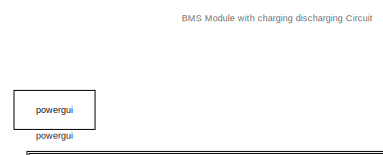
[diagram: root canvas - part 1/3, top center region]
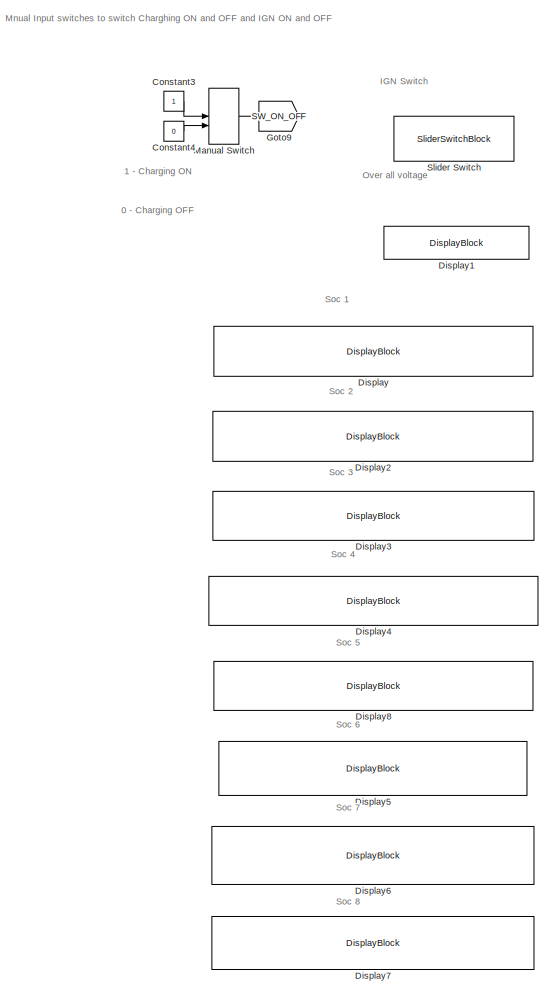
[diagram: root canvas - part 2/3, left side, full height]
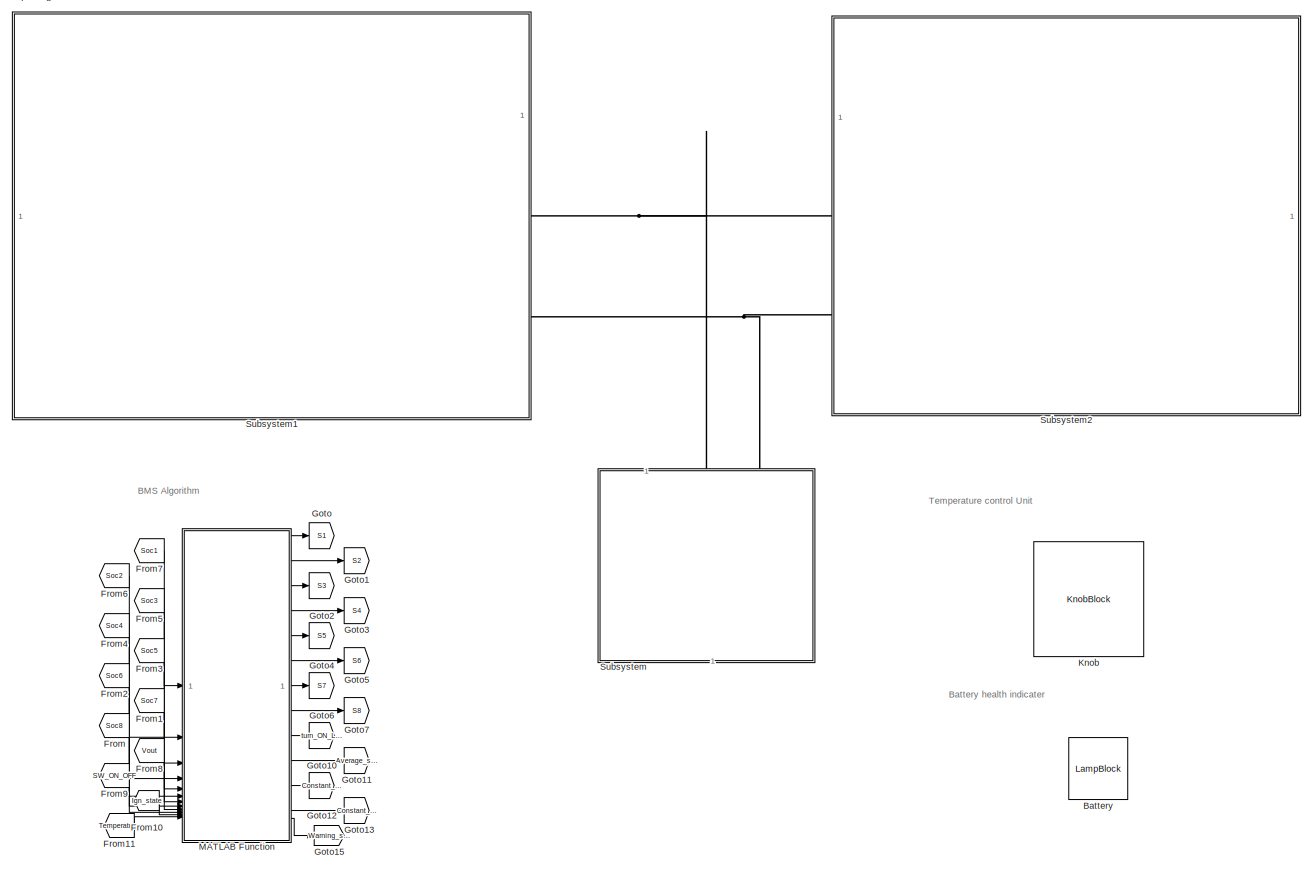
[diagram: root canvas - part 3/3, center side, full height]
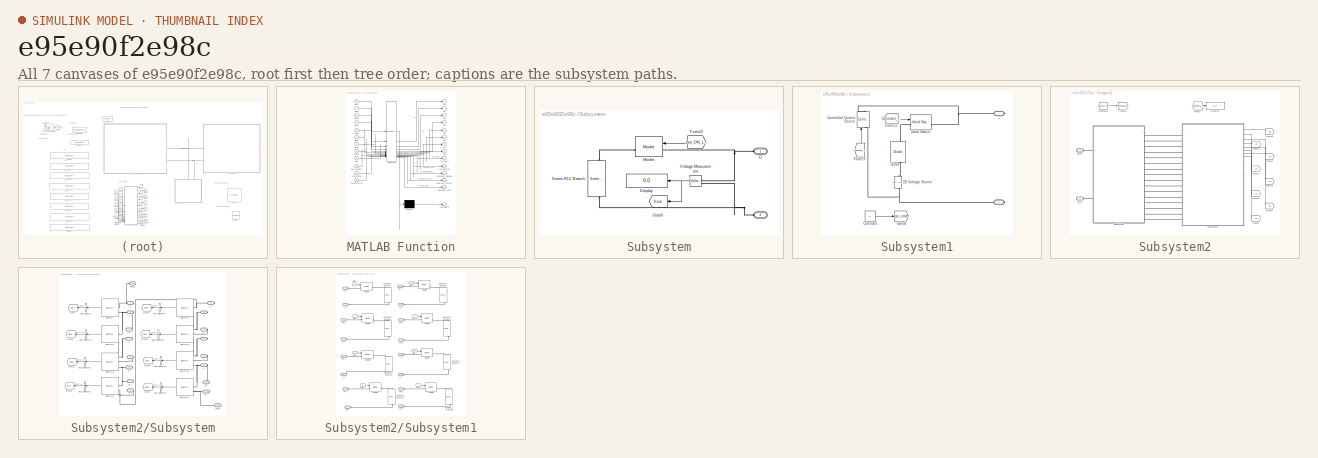
[diagram: thumbnail index - all 7 canvases of the model, root first then tree order]
MODEL slx_e95e90f2e98c
KIND model
CONFIG AbsTol = auto
CONFIG EnableMultiTasking = off
CONFIG FixedStep = auto
CONFIG MaxStep = auto
CONFIG MinStep = auto
CONFIG RelTol = 1e-3
CONFIG SampleTimeConstraint = Unconstrained
CONFIG SolverName = VariableStepAuto
CONFIG StartTime = 0.0
CONFIG StopTime = 3600
BLOCK [LampBlock] Battery
  Icon = Battery
  LabelPosition = Hide
BLOCK [Constant] Constant3
BLOCK [Constant] Constant4
  Value = 0
BLOCK [DisplayBlock] Display
  LabelPosition = Hide
  Transparency = 1
BLOCK [DisplayBlock] Display1
  LabelPosition = Hide
  Transparency = 1
BLOCK [DisplayBlock] Display2
  LabelPosition = Hide
  Transparency = 1
BLOCK [DisplayBlock] Display3
  LabelPosition = Hide
  Transparency = 1
BLOCK [DisplayBlock] Display4
  LabelPosition = Hide
  Transparency = 1
BLOCK [DisplayBlock] Display5
  LabelPosition = Hide
  Transparency = 1
BLOCK [DisplayBlock] Display6
  LabelPosition = Hide
  Transparency = 1
BLOCK [DisplayBlock] Display7
  LabelPosition = Hide
  Transparency = 1
BLOCK [DisplayBlock] Display8
  LabelPosition = Hide
  Transparency = 1
BLOCK [From] From
  GotoTag = Soc8
  TagVisibility = global
BLOCK [From] From1
  GotoTag = Soc7
  TagVisibility = global
BLOCK [From] From10
  GotoTag = Ign_state
  TagVisibility = global
BLOCK [From] From11
  GotoTag = Temperature
  TagVisibility = global
BLOCK [From] From2
  GotoTag = Soc6
  TagVisibility = global
BLOCK [From] From3
  GotoTag = Soc5
  TagVisibility = global
BLOCK [From] From4
  GotoTag = Soc4
  TagVisibility = global
BLOCK [From] From5
  GotoTag = Soc3
  TagVisibility = global
BLOCK [From] From6
  GotoTag = Soc2
  TagVisibility = global
BLOCK [From] From7
  GotoTag = Soc1
  TagVisibility = global
BLOCK [From] From8
  GotoTag = Vout
  TagVisibility = global
BLOCK [From] From9
  GotoTag = SW_ON_OFF
BLOCK [Goto] Goto
  GotoTag = S1
  TagVisibility = global
BLOCK [Goto] Goto1
  GotoTag = S2
  TagVisibility = global
BLOCK [Goto] Goto10
  GotoTag = turn_ON_Load
  TagVisibility = global
BLOCK [Goto] Goto11
  GotoTag = Average_soc
  TagVisibility = global
BLOCK [Goto] Goto12
  GotoTag = Constant_voltage
  TagVisibility = global
BLOCK [Goto] Goto13
  GotoTag = Constant_Current
  TagVisibility = global
BLOCK [Goto] Goto15
  GotoTag = Warning_state
  TagVisibility = global
BLOCK [Goto] Goto2
  GotoTag = S3
  TagVisibility = global
BLOCK [Goto] Goto3
  GotoTag = S4
  TagVisibility = global
BLOCK [Goto] Goto4
  GotoTag = S5
  TagVisibility = global
BLOCK [Goto] Goto5
  GotoTag = S6
  TagVisibility = global
BLOCK [Goto] Goto6
  GotoTag = S7
  TagVisibility = global
BLOCK [Goto] Goto7
  GotoTag = S8
  TagVisibility = global
BLOCK [Goto] Goto9
  GotoTag = SW_ON_OFF
BLOCK [KnobBlock] Knob
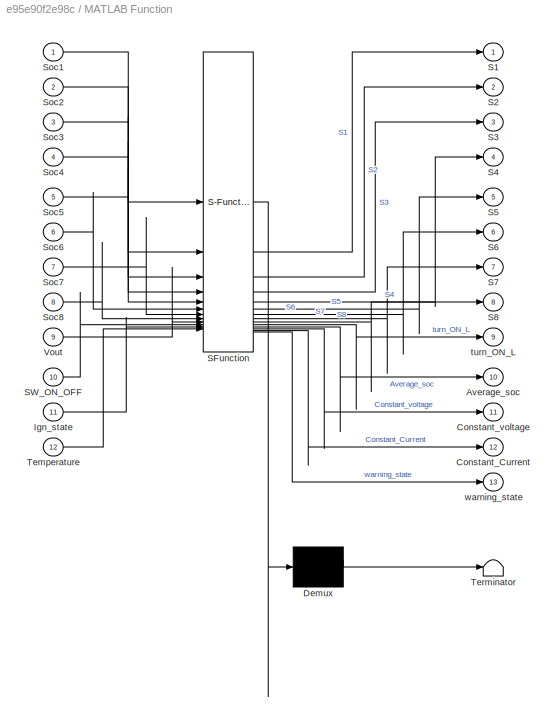
BLOCK [SubSystem] MATLAB Function
  ErrorFcn = Stateflow.Translate.translate
  PermitHierarchicalResolution = ExplicitOnly
  SFBlockType = MATLAB Function
  TreatAsAtomicUnit = on
BLOCK [Demux] MATLAB Function/ Demux 
  Outputs = 1
BLOCK [S-Function] MATLAB Function/ SFunction 
  EnableBusSupport = on
  FunctionName = sf_sfun
  PortCounts = [12 14]
  SFcnIsStateOwnerBlock = off
  SFunctionDeploymentMode = off
  Tag = Stateflow S-Function 2
BLOCK [Terminator] MATLAB Function/ Terminator 
BLOCK [Outport] MATLAB Function/Average_soc
  Port = 10
BLOCK [Outport] MATLAB Function/Constant_Current
  Port = 12
BLOCK [Outport] MATLAB Function/Constant_voltage
  Port = 11
BLOCK [Inport] MATLAB Function/Ign_state
  Port = 11
BLOCK [Outport] MATLAB Function/S1
BLOCK [Outport] MATLAB Function/S2
  Port = 2
BLOCK [Outport] MATLAB Function/S3
  Port = 3
BLOCK [Outport] MATLAB Function/S4
  Port = 4
BLOCK [Outport] MATLAB Function/S5
  Port = 5
BLOCK [Outport] MATLAB Function/S6
  Port = 6
BLOCK [Outport] MATLAB Function/S7
  Port = 7
BLOCK [Outport] MATLAB Function/S8
  Port = 8
BLOCK [Inport] MATLAB Function/SW_ON_OFF
  Port = 10
BLOCK [Inport] MATLAB Function/Soc1
BLOCK [Inport] MATLAB Function/Soc2
  Port = 2
BLOCK [Inport] MATLAB Function/Soc3
  Port = 3
BLOCK [Inport] MATLAB Function/Soc4
  Port = 4
BLOCK [Inport] MATLAB Function/Soc5
  Port = 5
BLOCK [Inport] MATLAB Function/Soc6
  Port = 6
BLOCK [Inport] MATLAB Function/Soc7
  Port = 7
BLOCK [Inport] MATLAB Function/Soc8
  Port = 8
BLOCK [Inport] MATLAB Function/Temperature
  Port = 12
BLOCK [Inport] MATLAB Function/Vout
  Port = 9
BLOCK [Outport] MATLAB Function/turn_ON_L
  Port = 9
BLOCK [Outport] MATLAB Function/warning_state
  Port = 13
BLOCK [ManualSwitch] Manual Switch
  CurrentSetting = 0
BLOCK [SliderSwitchBlock] Slider Switch
BLOCK [SubSystem] Subsystem
  NameLocation = left
BLOCK [PMIOPort] Subsystem/-
  NameLocation = top
  Port = 2
  Side = Left
BLOCK [PMIOPort] Subsystem/D
  NameLocation = top
  Side = Left
BLOCK [Display] Subsystem/Display
  Decimation = 1
  NameLocation = top
BLOCK [From] Subsystem/From12
  GotoTag = turn_ON_Load
  NameLocation = top
  TagVisibility = global
BLOCK [Goto] Subsystem/Goto8
  GotoTag = Vout
  NameLocation = top
  TagVisibility = global
BLOCK [Reference] Subsystem/Mosfet  REF=spsMosfetLib/Mosfet
  LibrarySourceBlock = sps_lib/Power Electronics/Mosfet
  SourceBlock = spsMosfetLib/Mosfet
  SourceType = Mosfet
BLOCK [Reference] Subsystem/Series RLC Branch  REF=spsSeriesRLCBranchLib/Series RLC Branch
  LibrarySourceBlock = sps_lib/Passives/Series RLC Branch
  NameLocation = left
  SourceBlock = spsSeriesRLCBranchLib/Series RLC Branch
  SourceType = Series RLC Branch
BLOCK [Reference] Subsystem/Voltage Measurement  REF=spsVoltageMeasurementLib/Voltage Measurement
  LibrarySourceBlock = sps_lib/Sensors and Measurements/Voltage Measurement
  NameLocation = top
  SourceBlock = spsVoltageMeasurementLib/Voltage Measurement
  SourceType = Voltage Measurement
  UserDataPersistent = on
BLOCK [SubSystem] Subsystem1
BLOCK [PMIOPort] Subsystem1/+
  Side = Right
BLOCK [PMIOPort] Subsystem1/-
  Port = 2
  Side = Right
BLOCK [Constant] Subsystem1/Constant
  Value = 0
BLOCK [Reference] Subsystem1/Controlled Current Source  REF=spsControlledCurrentSourceLib/Controlled Current Source
  LibrarySourceBlock = sps_lib/Sources/Controlled Current Source
  SourceBlock = spsControlledCurrentSourceLib/Controlled Current Source
  SourceType = Controlled Current Source
BLOCK [Reference] Subsystem1/DC Voltage Source  REF=spsDCVoltageSourceLib/DC Voltage Source
  LibrarySourceBlock = sps_lib/Sources/DC Voltage Source
  SourceBlock = spsDCVoltageSourceLib/DC Voltage Source
  SourceType = DC Voltage Source
BLOCK [Reference] Subsystem1/Diode  REF=spsDiodeLib/Diode
  LibrarySourceBlock = sps_lib/Power Electronics/Diode
  NameLocation = right
  SourceBlock = spsDiodeLib/Diode
  SourceType = Diode
BLOCK [From] Subsystem1/From10
  GotoTag = Constant_Current
  NameLocation = right
  TagVisibility = global
BLOCK [From] Subsystem1/From11
  GotoTag = Constant_voltage
  TagVisibility = global
BLOCK [Goto] Subsystem1/Goto8
  GotoTag = Ign_state
  TagVisibility = global
BLOCK [Reference] Subsystem1/Ideal Switch  REF=spsIdealSwitchLib/Ideal Switch
  LibrarySourceBlock = sps_lib/Power Electronics/Ideal Switch
  SourceBlock = spsIdealSwitchLib/Ideal Switch
  SourceType = Ideal Switch
BLOCK [SubSystem] Subsystem2
BLOCK [Constant] Subsystem2/Constant1
  Value = 96.0228271484375
BLOCK [Display] Subsystem2/Display1
  Decimation = 1
BLOCK [From] Subsystem2/From1
  GotoTag = Warning_state
  TagVisibility = global
BLOCK [From] Subsystem2/From10
  GotoTag = S3
  NameLocation = top
  TagVisibility = global
BLOCK [From] Subsystem2/From11
  GotoTag = S4
  NameLocation = top
  TagVisibility = global
BLOCK [From] Subsystem2/From12
  GotoTag = S7
  NameLocation = top
  TagVisibility = global
BLOCK [From] Subsystem2/From13
  GotoTag = S8
  NameLocation = top
  TagVisibility = global
BLOCK [From] Subsystem2/From14
  GotoTag = S5
  NameLocation = top
  TagVisibility = global
BLOCK [From] Subsystem2/From15
  GotoTag = S6
  NameLocation = top
  TagVisibility = global
BLOCK [From] Subsystem2/From8
  GotoTag = S1
  NameLocation = top
  TagVisibility = global
BLOCK [From] Subsystem2/From9
  GotoTag = S2
  NameLocation = top
  TagVisibility = global
BLOCK [Goto] Subsystem2/Goto14
  GotoTag = Temperature
  TagVisibility = global
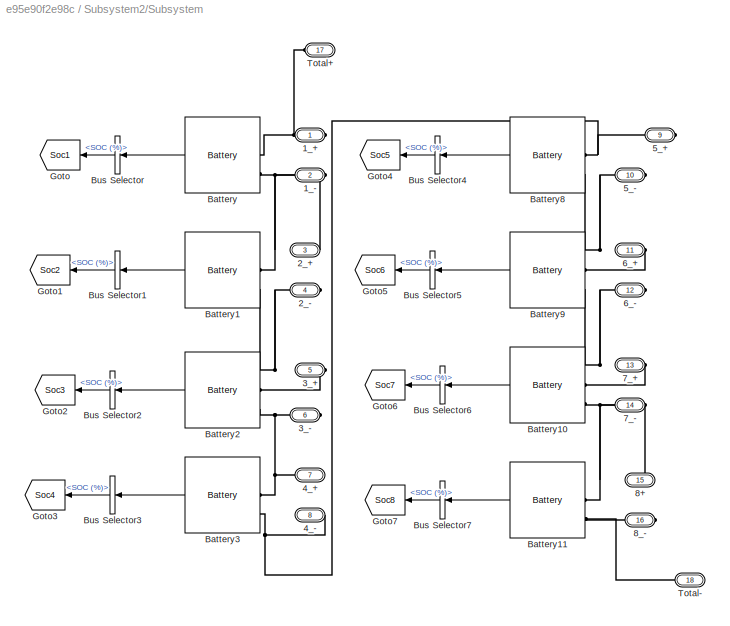
BLOCK [SubSystem] Subsystem2/Subsystem
BLOCK [PMIOPort] Subsystem2/Subsystem/1_+
  Side = Right
BLOCK [PMIOPort] Subsystem2/Subsystem/1_-
  Port = 2
  Side = Right
BLOCK [PMIOPort] Subsystem2/Subsystem/2_+
  Port = 3
  Side = Right
BLOCK [PMIOPort] Subsystem2/Subsystem/2_-
  Port = 4
  Side = Right
BLOCK [PMIOPort] Subsystem2/Subsystem/3_+
  Port = 5
  Side = Right
BLOCK [PMIOPort] Subsystem2/Subsystem/3_-
  Port = 6
  Side = Right
BLOCK [PMIOPort] Subsystem2/Subsystem/4_+
  Port = 7
  Side = Right
BLOCK [PMIOPort] Subsystem2/Subsystem/4_-
  Port = 8
  Side = Right
BLOCK [PMIOPort] Subsystem2/Subsystem/5_+
  Port = 9
  Side = Right
BLOCK [PMIOPort] Subsystem2/Subsystem/5_-
  Port = 10
  Side = Right
BLOCK [PMIOPort] Subsystem2/Subsystem/6_+
  Port = 11
  Side = Right
BLOCK [PMIOPort] Subsystem2/Subsystem/6_-
  Port = 12
  Side = Right
BLOCK [PMIOPort] Subsystem2/Subsystem/7_+
  Port = 13
  Side = Right
BLOCK [PMIOPort] Subsystem2/Subsystem/7_-
  Port = 14
  Side = Right
BLOCK [PMIOPort] Subsystem2/Subsystem/8+
  NameLocation = top
  Port = 15
  Side = Right
BLOCK [PMIOPort] Subsystem2/Subsystem/8_-
  Port = 16
  Side = Right
BLOCK [Reference] Subsystem2/Subsystem/Battery  REF=spsBatteryLib/Battery
  LibrarySourceBlock = sps_lib/Sources/Battery
  SourceBlock = spsBatteryLib/Battery
  SourceType = Battery
BLOCK [Reference] Subsystem2/Subsystem/Battery1  REF=spsBatteryLib/Battery
  LibrarySourceBlock = sps_lib/Sources/Battery
  SourceBlock = spsBatteryLib/Battery
  SourceType = Battery
BLOCK [Reference] Subsystem2/Subsystem/Battery10  REF=spsBatteryLib/Battery
  LibrarySourceBlock = sps_lib/Sources/Battery
  SourceBlock = spsBatteryLib/Battery
  SourceType = Battery
BLOCK [Reference] Subsystem2/Subsystem/Battery11  REF=spsBatteryLib/Battery
  LibrarySourceBlock = sps_lib/Sources/Battery
  SourceBlock = spsBatteryLib/Battery
  SourceType = Battery
BLOCK [Reference] Subsystem2/Subsystem/Battery2  REF=spsBatteryLib/Battery
  LibrarySourceBlock = sps_lib/Sources/Battery
  SourceBlock = spsBatteryLib/Battery
  SourceType = Battery
BLOCK [Reference] Subsystem2/Subsystem/Battery3  REF=spsBatteryLib/Battery
  LibrarySourceBlock = sps_lib/Sources/Battery
  SourceBlock = spsBatteryLib/Battery
  SourceType = Battery
BLOCK [Reference] Subsystem2/Subsystem/Battery8  REF=spsBatteryLib/Battery
  LibrarySourceBlock = sps_lib/Sources/Battery
  SourceBlock = spsBatteryLib/Battery
  SourceType = Battery
BLOCK [Reference] Subsystem2/Subsystem/Battery9  REF=spsBatteryLib/Battery
  LibrarySourceBlock = sps_lib/Sources/Battery
  SourceBlock = spsBatteryLib/Battery
  SourceType = Battery
BLOCK [BusSelector] Subsystem2/Subsystem/Bus Selector
  NameLocation = top
  OutputSignals = SOC (%)
BLOCK [BusSelector] Subsystem2/Subsystem/Bus Selector1
  NameLocation = top
  OutputSignals = SOC (%)
BLOCK [BusSelector] Subsystem2/Subsystem/Bus Selector2
  NameLocation = top
  OutputSignals = SOC (%)
BLOCK [BusSelector] Subsystem2/Subsystem/Bus Selector3
  NameLocation = top
  OutputSignals = SOC (%)
BLOCK [BusSelector] Subsystem2/Subsystem/Bus Selector4
  NameLocation = top
  OutputSignals = SOC (%)
BLOCK [BusSelector] Subsystem2/Subsystem/Bus Selector5
  NameLocation = top
  OutputSignals = SOC (%)
BLOCK [BusSelector] Subsystem2/Subsystem/Bus Selector6
  NameLocation = top
  OutputSignals = SOC (%)
BLOCK [BusSelector] Subsystem2/Subsystem/Bus Selector7
  NameLocation = top
  OutputSignals = SOC (%)
BLOCK [Goto] Subsystem2/Subsystem/Goto
  GotoTag = Soc1
  NameLocation = top
  TagVisibility = global
BLOCK [Goto] Subsystem2/Subsystem/Goto1
  GotoTag = Soc2
  NameLocation = top
  TagVisibility = global
BLOCK [Goto] Subsystem2/Subsystem/Goto2
  GotoTag = Soc3
  NameLocation = top
  TagVisibility = global
BLOCK [Goto] Subsystem2/Subsystem/Goto3
  GotoTag = Soc4
  NameLocation = top
  TagVisibility = global
BLOCK [Goto] Subsystem2/Subsystem/Goto4
  GotoTag = Soc5
  NameLocation = top
  TagVisibility = global
BLOCK [Goto] Subsystem2/Subsystem/Goto5
  GotoTag = Soc6
  NameLocation = top
  TagVisibility = global
BLOCK [Goto] Subsystem2/Subsystem/Goto6
  GotoTag = Soc7
  NameLocation = top
  TagVisibility = global
BLOCK [Goto] Subsystem2/Subsystem/Goto7
  GotoTag = Soc8
  NameLocation = top
  TagVisibility = global
BLOCK [PMIOPort] Subsystem2/Subsystem/Total+
  Port = 17
  Side = Left
BLOCK [PMIOPort] Subsystem2/Subsystem/Total-
  Port = 18
  Side = Left
BLOCK [SubSystem] Subsystem2/Subsystem1
  PortSchema = {"entries":[{"content":{"sides":[{"content":{"connectorIds":["LConn1","LConn2","LConn3","LConn4","LConn5","LConn6","LConn7","LConn8","LConn9","LConn10","LConn11","LConn12","LConn13","LConn14","LConn15","LConn16"]},"type":"ConnectorPlacement.EquallySpacedRectSide","uuid":"299ba52d-8015-465c-9de8-ad4a2af20b1b"},{"content":{"connectorIds":["In1","In2","In3","In4","In5","In6","In7","In8"],"side":"RIGH...<+408ch>
BLOCK [PMIOPort] Subsystem2/Subsystem1/D1_+
  Side = Left
BLOCK [PMIOPort] Subsystem2/Subsystem1/D2_+
  Port = 3
  Side = Left
BLOCK [PMIOPort] Subsystem2/Subsystem1/D3_+
  Port = 5
  Side = Left
BLOCK [PMIOPort] Subsystem2/Subsystem1/D4_+
  Port = 7
  Side = Left
BLOCK [PMIOPort] Subsystem2/Subsystem1/D5_+
  Port = 9
  Side = Left
BLOCK [PMIOPort] Subsystem2/Subsystem1/D6_+
  Port = 11
  Side = Left
BLOCK [PMIOPort] Subsystem2/Subsystem1/D7_+
  Port = 13
  Side = Left
BLOCK [PMIOPort] Subsystem2/Subsystem1/D8_+
  Port = 15
  Side = Left
BLOCK [Reference] Subsystem2/Subsystem1/Mosfet1  REF=spsMosfetLib/Mosfet
  LibrarySourceBlock = sps_lib/Power Electronics/Mosfet
  SourceBlock = spsMosfetLib/Mosfet
  SourceType = Mosfet
BLOCK [Reference] Subsystem2/Subsystem1/Mosfet2  REF=spsMosfetLib/Mosfet
  LibrarySourceBlock = sps_lib/Power Electronics/Mosfet
  SourceBlock = spsMosfetLib/Mosfet
  SourceType = Mosfet
BLOCK [Reference] Subsystem2/Subsystem1/Mosfet3  REF=spsMosfetLib/Mosfet
  LibrarySourceBlock = sps_lib/Power Electronics/Mosfet
  SourceBlock = spsMosfetLib/Mosfet
  SourceType = Mosfet
BLOCK [Reference] Subsystem2/Subsystem1/Mosfet4  REF=spsMosfetLib/Mosfet
  LibrarySourceBlock = sps_lib/Power Electronics/Mosfet
  SourceBlock = spsMosfetLib/Mosfet
  SourceType = Mosfet
BLOCK [Reference] Subsystem2/Subsystem1/Mosfet5  REF=spsMosfetLib/Mosfet
  LibrarySourceBlock = sps_lib/Power Electronics/Mosfet
  SourceBlock = spsMosfetLib/Mosfet
  SourceType = Mosfet
BLOCK [Reference] Subsystem2/Subsystem1/Mosfet6  REF=spsMosfetLib/Mosfet
  LibrarySourceBlock = sps_lib/Power Electronics/Mosfet
  SourceBlock = spsMosfetLib/Mosfet
  SourceType = Mosfet
BLOCK [Reference] Subsystem2/Subsystem1/Mosfet7  REF=spsMosfetLib/Mosfet
  LibrarySourceBlock = sps_lib/Power Electronics/Mosfet
  SourceBlock = spsMosfetLib/Mosfet
  SourceType = Mosfet
BLOCK [Reference] Subsystem2/Subsystem1/Mosfet8  REF=spsMosfetLib/Mosfet
  LibrarySourceBlock = sps_lib/Power Electronics/Mosfet
  SourceBlock = spsMosfetLib/Mosfet
  SourceType = Mosfet
BLOCK [PMIOPort] Subsystem2/Subsystem1/S_1-
  Port = 2
  Side = Left
BLOCK [PMIOPort] Subsystem2/Subsystem1/S_2-
  Port = 4
  Side = Left
BLOCK [PMIOPort] Subsystem2/Subsystem1/S_3-
  Port = 6
  Side = Left
BLOCK [PMIOPort] Subsystem2/Subsystem1/S_4-
  Port = 8
  Side = Left
BLOCK [PMIOPort] Subsystem2/Subsystem1/S_5-
  Port = 10
  Side = Left
BLOCK [PMIOPort] Subsystem2/Subsystem1/S_6-
  Port = 12
  Side = Left
BLOCK [PMIOPort] Subsystem2/Subsystem1/S_7-
  Port = 14
  Side = Left
BLOCK [PMIOPort] Subsystem2/Subsystem1/S_8-
  Port = 16
  Side = Left
BLOCK [Reference] Subsystem2/Subsystem1/Series RLC Branch1  REF=spsSeriesRLCBranchLib/Series RLC Branch
  LibrarySourceBlock = sps_lib/Passives/Series RLC Branch
  NameLocation = left
  SourceBlock = spsSeriesRLCBranchLib/Series RLC Branch
  SourceType = Series RLC Branch
BLOCK [Reference] Subsystem2/Subsystem1/Series RLC Branch2  REF=spsSeriesRLCBranchLib/Series RLC Branch
  LibrarySourceBlock = sps_lib/Passives/Series RLC Branch
  NameLocation = left
  SourceBlock = spsSeriesRLCBranchLib/Series RLC Branch
  SourceType = Series RLC Branch
BLOCK [Reference] Subsystem2/Subsystem1/Series RLC Branch3  REF=spsSeriesRLCBranchLib/Series RLC Branch
  LibrarySourceBlock = sps_lib/Passives/Series RLC Branch
  NameLocation = left
  SourceBlock = spsSeriesRLCBranchLib/Series RLC Branch
  SourceType = Series RLC Branch
BLOCK [Reference] Subsystem2/Subsystem1/Series RLC Branch4  REF=spsSeriesRLCBranchLib/Series RLC Branch
  LibrarySourceBlock = sps_lib/Passives/Series RLC Branch
  NameLocation = left
  SourceBlock = spsSeriesRLCBranchLib/Series RLC Branch
  SourceType = Series RLC Branch
BLOCK [Reference] Subsystem2/Subsystem1/Series RLC Branch5  REF=spsSeriesRLCBranchLib/Series RLC Branch
  LibrarySourceBlock = sps_lib/Passives/Series RLC Branch
  NameLocation = left
  SourceBlock = spsSeriesRLCBranchLib/Series RLC Branch
  SourceType = Series RLC Branch
BLOCK [Reference] Subsystem2/Subsystem1/Series RLC Branch6  REF=spsSeriesRLCBranchLib/Series RLC Branch
  LibrarySourceBlock = sps_lib/Passives/Series RLC Branch
  NameLocation = left
  SourceBlock = spsSeriesRLCBranchLib/Series RLC Branch
  SourceType = Series RLC Branch
BLOCK [Reference] Subsystem2/Subsystem1/Series RLC Branch7  REF=spsSeriesRLCBranchLib/Series RLC Branch
  LibrarySourceBlock = sps_lib/Passives/Series RLC Branch
  NameLocation = left
  SourceBlock = spsSeriesRLCBranchLib/Series RLC Branch
  SourceType = Series RLC Branch
BLOCK [Reference] Subsystem2/Subsystem1/Series RLC Branch8  REF=spsSeriesRLCBranchLib/Series RLC Branch
  LibrarySourceBlock = sps_lib/Passives/Series RLC Branch
  NameLocation = left
  SourceBlock = spsSeriesRLCBranchLib/Series RLC Branch
  SourceType = Series RLC Branch
BLOCK [Inport] Subsystem2/Subsystem1/gate_1
  IconDisplay = Port number and signal name
  Port = 8
BLOCK [Inport] Subsystem2/Subsystem1/gate_2
  Port = 7
BLOCK [Inport] Subsystem2/Subsystem1/gate_3
  Port = 6
BLOCK [Inport] Subsystem2/Subsystem1/gate_4
  Port = 5
BLOCK [Inport] Subsystem2/Subsystem1/gate_5
  Port = 4
BLOCK [Inport] Subsystem2/Subsystem1/gate_6
  Port = 3
BLOCK [Inport] Subsystem2/Subsystem1/gate_7
  Port = 2
BLOCK [Inport] Subsystem2/Subsystem1/gate_8
BLOCK [PMIOPort] Subsystem2/Total+
  Side = Left
BLOCK [PMIOPort] Subsystem2/Total-
  Port = 2
  Side = Left
BLOCK [Reference] powergui  REF=sps_lib/powergui
  LibrarySourceBlock = sps_lib/powergui
  Priority = 1
  SourceBlock = sps_lib/powergui
  SourceType = PSB option menu block
ANNOTATION (root): Soc 2
ANNOTATION (root): Soc 3
ANNOTATION (root): Soc 4
ANNOTATION (root): Soc 5
ANNOTATION (root): Soc 6
ANNOTATION (root): Soc 7
ANNOTATION (root): Soc 8
ANNOTATION (root): Mnual Input switches to switch Charghing ON and OFF and IGN ON and OFF
ANNOTATION (root): BMS Algorithm
ANNOTATION (root): IGN Switch
ANNOTATION (root): BMS Module with charging discharging Circuit
ANNOTATION (root): Battery health indicater
ANNOTATION (root): Over all voltage
ANNOTATION (root): Temperature control Unit
ANNOTATION (root): Soc 1
ANNOTATION (root): 0 - Charging OFF
ANNOTATION (root): 1 - Charging ON
LINE Constant3:1 -> Manual Switch:1
LINE Constant4:1 -> Manual Switch:2
LINE From10:1 -> MATLAB Function:11
LINE From11:1 -> MATLAB Function:12
LINE From1:1 -> MATLAB Function:7
LINE From2:1 -> MATLAB Function:6
LINE From3:1 -> MATLAB Function:5
LINE From4:1 -> MATLAB Function:4
LINE From5:1 -> MATLAB Function:3
LINE From6:1 -> MATLAB Function:2
LINE From7:1 -> MATLAB Function:1
LINE From8:1 -> MATLAB Function:9
LINE From9:1 -> MATLAB Function:10
LINE From:1 -> MATLAB Function:8
LINE MATLAB Function:1 -> Goto:1
LINE MATLAB Function:10 -> Goto11:1
LINE MATLAB Function:11 -> Goto12:1
LINE MATLAB Function:12 -> Goto13:1
LINE MATLAB Function:13 -> Goto15:1
LINE MATLAB Function:2 -> Goto1:1
LINE MATLAB Function:3 -> Goto2:1
LINE MATLAB Function:4 -> Goto3:1
LINE MATLAB Function:5 -> Goto4:1
LINE MATLAB Function:6 -> Goto5:1
LINE MATLAB Function:7 -> Goto6:1
LINE MATLAB Function:8 -> Goto7:1
LINE MATLAB Function:9 -> Goto10:1
LINE Manual Switch:1 -> Goto9:1
LINE Subsystem/From12:1 -> Subsystem/Mosfet:1
NET Subsystem/Voltage Measurement:1 -> Subsystem/Display:1, Subsystem/Goto8:1
LINE Subsystem1/Constant:1 -> Subsystem1/Goto8:1
LINE Subsystem1/From10:1 -> Subsystem1/Controlled Current Source:1
LINE Subsystem1/From11:1 -> Subsystem1/Ideal Switch:1
LINE Subsystem2/Constant1:1 -> Subsystem2/Goto14:1
LINE Subsystem2/From10:1 -> Subsystem2/Subsystem1:6
LINE Subsystem2/From11:1 -> Subsystem2/Subsystem1:5
LINE Subsystem2/From12:1 -> Subsystem2/Subsystem1:2
LINE Subsystem2/From13:1 -> Subsystem2/Subsystem1:1
LINE Subsystem2/From14:1 -> Subsystem2/Subsystem1:4
LINE Subsystem2/From15:1 -> Subsystem2/Subsystem1:3
LINE Subsystem2/From1:1 -> Subsystem2/Display1:1
LINE Subsystem2/From8:1 -> Subsystem2/Subsystem1:8
LINE Subsystem2/From9:1 -> Subsystem2/Subsystem1:7
LINE Subsystem2/Subsystem/Battery10:1 -> Subsystem2/Subsystem/Bus Selector6:1
LINE Subsystem2/Subsystem/Battery11:1 -> Subsystem2/Subsystem/Bus Selector7:1
LINE Subsystem2/Subsystem/Battery1:1 -> Subsystem2/Subsystem/Bus Selector1:1
LINE Subsystem2/Subsystem/Battery2:1 -> Subsystem2/Subsystem/Bus Selector2:1
LINE Subsystem2/Subsystem/Battery3:1 -> Subsystem2/Subsystem/Bus Selector3:1
LINE Subsystem2/Subsystem/Battery8:1 -> Subsystem2/Subsystem/Bus Selector4:1
LINE Subsystem2/Subsystem/Battery9:1 -> Subsystem2/Subsystem/Bus Selector5:1
LINE Subsystem2/Subsystem/Battery:1 -> Subsystem2/Subsystem/Bus Selector:1
LINE Subsystem2/Subsystem/Bus Selector1:1 -> Subsystem2/Subsystem/Goto1:1
LINE Subsystem2/Subsystem/Bus Selector2:1 -> Subsystem2/Subsystem/Goto2:1
LINE Subsystem2/Subsystem/Bus Selector3:1 -> Subsystem2/Subsystem/Goto3:1
LINE Subsystem2/Subsystem/Bus Selector4:1 -> Subsystem2/Subsystem/Goto4:1
LINE Subsystem2/Subsystem/Bus Selector5:1 -> Subsystem2/Subsystem/Goto5:1
LINE Subsystem2/Subsystem/Bus Selector6:1 -> Subsystem2/Subsystem/Goto6:1
LINE Subsystem2/Subsystem/Bus Selector7:1 -> Subsystem2/Subsystem/Goto7:1
LINE Subsystem2/Subsystem/Bus Selector:1 -> Subsystem2/Subsystem/Goto:1
LINE Subsystem2/Subsystem1/gate_1:1 -> Subsystem2/Subsystem1/Mosfet1:1
LINE Subsystem2/Subsystem1/gate_2:1 -> Subsystem2/Subsystem1/Mosfet2:1
LINE Subsystem2/Subsystem1/gate_3:1 -> Subsystem2/Subsystem1/Mosfet5:1
LINE Subsystem2/Subsystem1/gate_4:1 -> Subsystem2/Subsystem1/Mosfet6:1
LINE Subsystem2/Subsystem1/gate_5:1 -> Subsystem2/Subsystem1/Mosfet3:1
LINE Subsystem2/Subsystem1/gate_6:1 -> Subsystem2/Subsystem1/Mosfet4:1
LINE Subsystem2/Subsystem1/gate_7:1 -> Subsystem2/Subsystem1/Mosfet7:1
LINE Subsystem2/Subsystem1/gate_8:1 -> Subsystem2/Subsystem1/Mosfet8:1
PNET net1: Subsystem/-:RConn1 -- Subsystem/Series RLC Branch:RConn1 -- Subsystem/Voltage Measurement:LConn2
PNET net2: Subsystem/D:RConn1 -- Subsystem/Mosfet:LConn1 -- Subsystem/Voltage Measurement:LConn1
PLINE Subsystem/Mosfet:RConn1 -- Subsystem/Series RLC Branch:LConn1
PNET net3: Subsystem1/+:RConn1 -- Subsystem1/Controlled Current Source:RConn1 -- Subsystem1/Ideal Switch:RConn1
PNET net4: Subsystem1/-:RConn1 -- Subsystem1/Controlled Current Source:LConn1 -- Subsystem1/DC Voltage Source:LConn1
PLINE Subsystem1/DC Voltage Source:RConn1 -- Subsystem1/Diode:LConn1
PLINE Subsystem1/Diode:RConn1 -- Subsystem1/Ideal Switch:LConn1
PNET net5: Subsystem1:RConn1 -- Subsystem2:LConn1 -- Subsystem:LConn1
PNET net6: Subsystem1:RConn2 -- Subsystem2:LConn2 -- Subsystem:LConn2
PNET net7: Subsystem2/Subsystem/1_+:RConn1 -- Subsystem2/Subsystem/Battery:LConn1 -- Subsystem2/Subsystem/Total+:RConn1
PNET net8: Subsystem2/Subsystem/1_-:RConn1 -- Subsystem2/Subsystem/2_+:RConn1 -- Subsystem2/Subsystem/Battery1:LConn1 -- Subsystem2/Subsystem/Battery:LConn2
PNET net9: Subsystem2/Subsystem/2_-:RConn1 -- Subsystem2/Subsystem/3_+:RConn1 -- Subsystem2/Subsystem/Battery1:LConn2 -- Subsystem2/Subsystem/Battery2:LConn1
PNET net10: Subsystem2/Subsystem/3_-:RConn1 -- Subsystem2/Subsystem/4_+:RConn1 -- Subsystem2/Subsystem/Battery2:LConn2 -- Subsystem2/Subsystem/Battery3:LConn1
PNET net11: Subsystem2/Subsystem/4_-:RConn1 -- Subsystem2/Subsystem/5_+:RConn1 -- Subsystem2/Subsystem/Battery3:LConn2 -- Subsystem2/Subsystem/Battery8:LConn1
PNET net12: Subsystem2/Subsystem/5_-:RConn1 -- Subsystem2/Subsystem/6_+:RConn1 -- Subsystem2/Subsystem/Battery8:LConn2 -- Subsystem2/Subsystem/Battery9:LConn1
PNET net13: Subsystem2/Subsystem/6_-:RConn1 -- Subsystem2/Subsystem/7_+:RConn1 -- Subsystem2/Subsystem/Battery10:LConn1 -- Subsystem2/Subsystem/Battery9:LConn2
PNET net14: Subsystem2/Subsystem/7_-:RConn1 -- Subsystem2/Subsystem/8+:RConn1 -- Subsystem2/Subsystem/Battery10:LConn2 -- Subsystem2/Subsystem/Battery11:LConn1
PNET net15: Subsystem2/Subsystem/8_-:RConn1 -- Subsystem2/Subsystem/Battery11:LConn2 -- Subsystem2/Subsystem/Total-:RConn1
PLINE Subsystem2/Subsystem1/D1_+:RConn1 -- Subsystem2/Subsystem1/Mosfet1:LConn1
PLINE Subsystem2/Subsystem1/D2_+:RConn1 -- Subsystem2/Subsystem1/Mosfet2:LConn1
PLINE Subsystem2/Subsystem1/D3_+:RConn1 -- Subsystem2/Subsystem1/Mosfet5:LConn1
PLINE Subsystem2/Subsystem1/D4_+:RConn1 -- Subsystem2/Subsystem1/Mosfet6:LConn1
PLINE Subsystem2/Subsystem1/D5_+:RConn1 -- Subsystem2/Subsystem1/Mosfet3:LConn1
PLINE Subsystem2/Subsystem1/D6_+:RConn1 -- Subsystem2/Subsystem1/Mosfet4:LConn1
PLINE Subsystem2/Subsystem1/D7_+:RConn1 -- Subsystem2/Subsystem1/Mosfet7:LConn1
PLINE Subsystem2/Subsystem1/D8_+:RConn1 -- Subsystem2/Subsystem1/Mosfet8:LConn1
PLINE Subsystem2/Subsystem1/Mosfet1:RConn1 -- Subsystem2/Subsystem1/Series RLC Branch1:LConn1
PLINE Subsystem2/Subsystem1/Mosfet2:RConn1 -- Subsystem2/Subsystem1/Series RLC Branch2:LConn1
PLINE Subsystem2/Subsystem1/Mosfet3:RConn1 -- Subsystem2/Subsystem1/Series RLC Branch3:LConn1
PLINE Subsystem2/Subsystem1/Mosfet4:RConn1 -- Subsystem2/Subsystem1/Series RLC Branch4:LConn1
PLINE Subsystem2/Subsystem1/Mosfet5:RConn1 -- Subsystem2/Subsystem1/Series RLC Branch5:LConn1
PLINE Subsystem2/Subsystem1/Mosfet6:RConn1 -- Subsystem2/Subsystem1/Series RLC Branch6:LConn1
PLINE Subsystem2/Subsystem1/Mosfet7:RConn1 -- Subsystem2/Subsystem1/Series RLC Branch7:LConn1
PLINE Subsystem2/Subsystem1/Mosfet8:RConn1 -- Subsystem2/Subsystem1/Series RLC Branch8:LConn1
PLINE Subsystem2/Subsystem1/S_1-:RConn1 -- Subsystem2/Subsystem1/Series RLC Branch1:RConn1
PLINE Subsystem2/Subsystem1/S_2-:RConn1 -- Subsystem2/Subsystem1/Series RLC Branch2:RConn1
PLINE Subsystem2/Subsystem1/S_3-:RConn1 -- Subsystem2/Subsystem1/Series RLC Branch5:RConn1
PLINE Subsystem2/Subsystem1/S_4-:RConn1 -- Subsystem2/Subsystem1/Series RLC Branch6:RConn1
PLINE Subsystem2/Subsystem1/S_5-:RConn1 -- Subsystem2/Subsystem1/Series RLC Branch3:RConn1
PLINE Subsystem2/Subsystem1/S_6-:RConn1 -- Subsystem2/Subsystem1/Series RLC Branch4:RConn1
PLINE Subsystem2/Subsystem1/S_7-:RConn1 -- Subsystem2/Subsystem1/Series RLC Branch7:RConn1
PLINE Subsystem2/Subsystem1/S_8-:RConn1 -- Subsystem2/Subsystem1/Series RLC Branch8:RConn1
PLINE Subsystem2/Subsystem1:LConn1 -- Subsystem2/Subsystem:RConn1
PLINE Subsystem2/Subsystem1:LConn10 -- Subsystem2/Subsystem:RConn10
PLINE Subsystem2/Subsystem1:LConn11 -- Subsystem2/Subsystem:RConn11
PLINE Subsystem2/Subsystem1:LConn12 -- Subsystem2/Subsystem:RConn12
PLINE Subsystem2/Subsystem1:LConn13 -- Subsystem2/Subsystem:RConn13
PLINE Subsystem2/Subsystem1:LConn14 -- Subsystem2/Subsystem:RConn14
PLINE Subsystem2/Subsystem1:LConn15 -- Subsystem2/Subsystem:RConn15
PLINE Subsystem2/Subsystem1:LConn16 -- Subsystem2/Subsystem:RConn16
PLINE Subsystem2/Subsystem1:LConn2 -- Subsystem2/Subsystem:RConn2
PLINE Subsystem2/Subsystem1:LConn3 -- Subsystem2/Subsystem:RConn3
PLINE Subsystem2/Subsystem1:LConn4 -- Subsystem2/Subsystem:RConn4
PLINE Subsystem2/Subsystem1:LConn5 -- Subsystem2/Subsystem:RConn5
PLINE Subsystem2/Subsystem1:LConn6 -- Subsystem2/Subsystem:RConn6
PLINE Subsystem2/Subsystem1:LConn7 -- Subsystem2/Subsystem:RConn7
PLINE Subsystem2/Subsystem1:LConn8 -- Subsystem2/Subsystem:RConn8
PLINE Subsystem2/Subsystem1:LConn9 -- Subsystem2/Subsystem:RConn9
PLINE Subsystem2/Subsystem:LConn1 -- Subsystem2/Total+:RConn1
PLINE Subsystem2/Subsystem:LConn2 -- Subsystem2/Total-:RConn1
note: NET lines group one-source signal fan-out (src -> all destinations, sorted); 1:1 wires keep LINE; PNET lines group multi-terminal physical nets as a canonical sorted terminal list (undirected conserving connections); 2-terminal nets keep the pairwise PLINE form
CHART MATLAB Function states=1 transitions=1
  STATE_LABEL 'eML_blk_kernel()'
  STATE_LABEL 'SCRIPT:\nfunction [S1, S2, S3, S4, S5, S6, S7, S8, turn_ON_L, Average_soc, Constant_voltage, Constant_Current,warning_state] = BMS(Soc1, Soc2, Soc3, Soc4, Soc5, Soc6, Soc7, Soc8, Vout, SW_ON_OFF,Ign_state, Temperature)\n    [Constant_voltage, Constant_Current,turn_ON_L,Average_soc,warning_state] = deal(0); % Default value\n    soc =int32([Soc1, Soc2, Soc3, Soc4, Soc5, Soc6, Soc7, Soc8]);\n    [S1, S2,...<+2722ch>'
CHART  states=0 transitions=0
